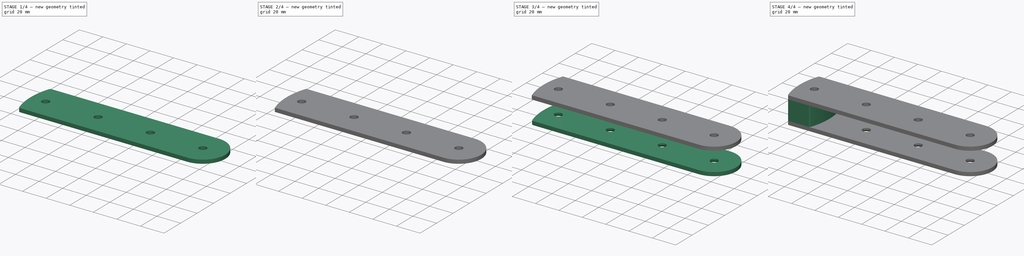
[diagram: build sequence overview — one tinted view per stage of 4, left to right]
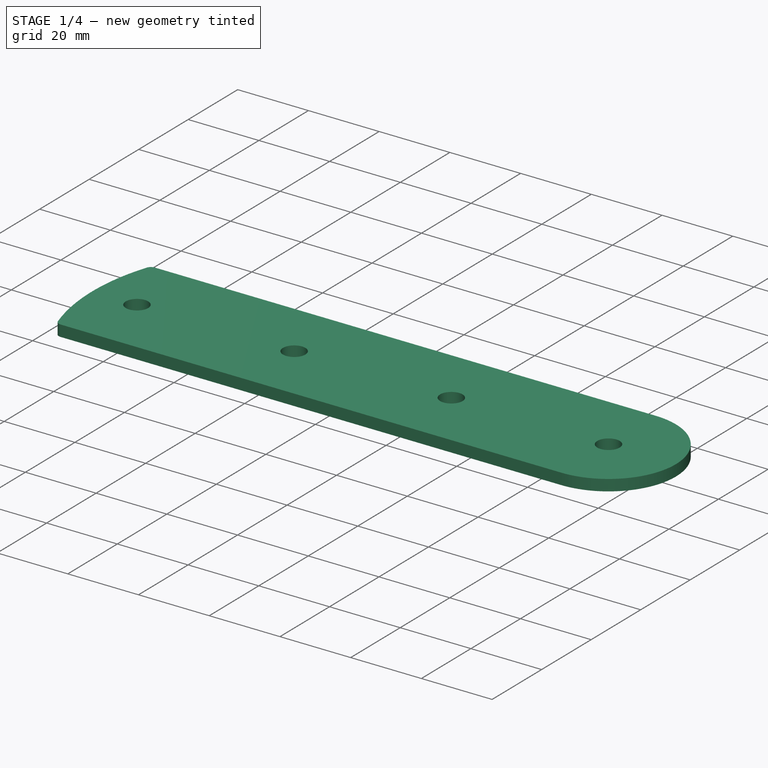
[diagram: stage 1 of 4 — iso view after this stage's code; geometry added in this stage tinted green]
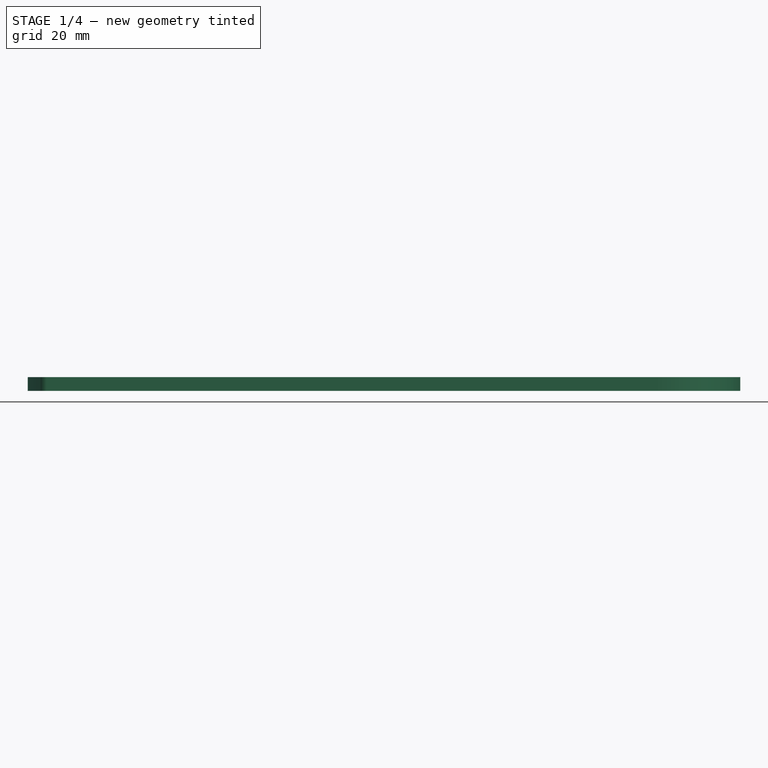
[diagram: stage 1 of 4 — front view after this stage's code; geometry added in this stage tinted green]
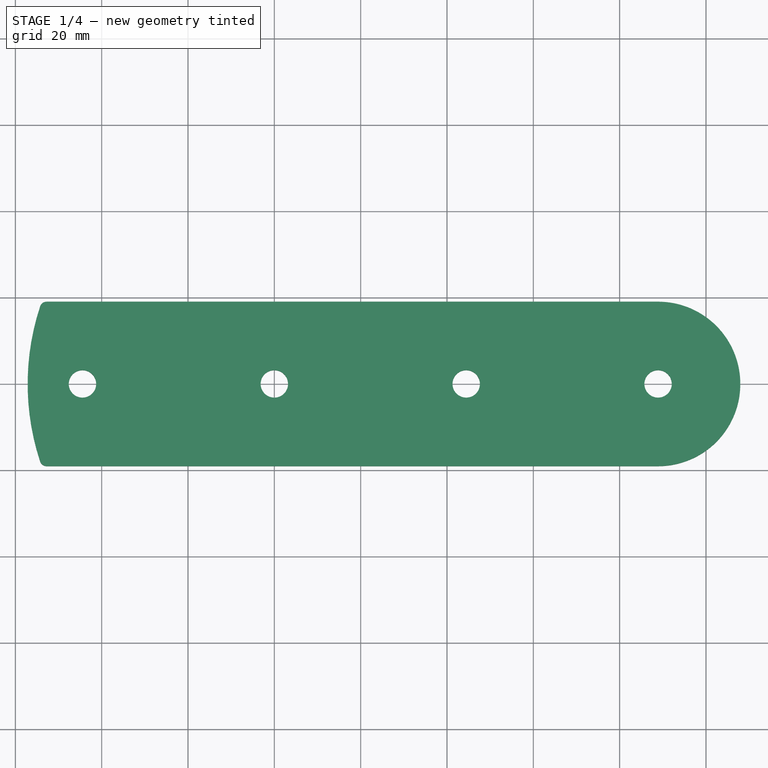
[diagram: stage 1 of 4 — top view after this stage's code; geometry added in this stage tinted green]
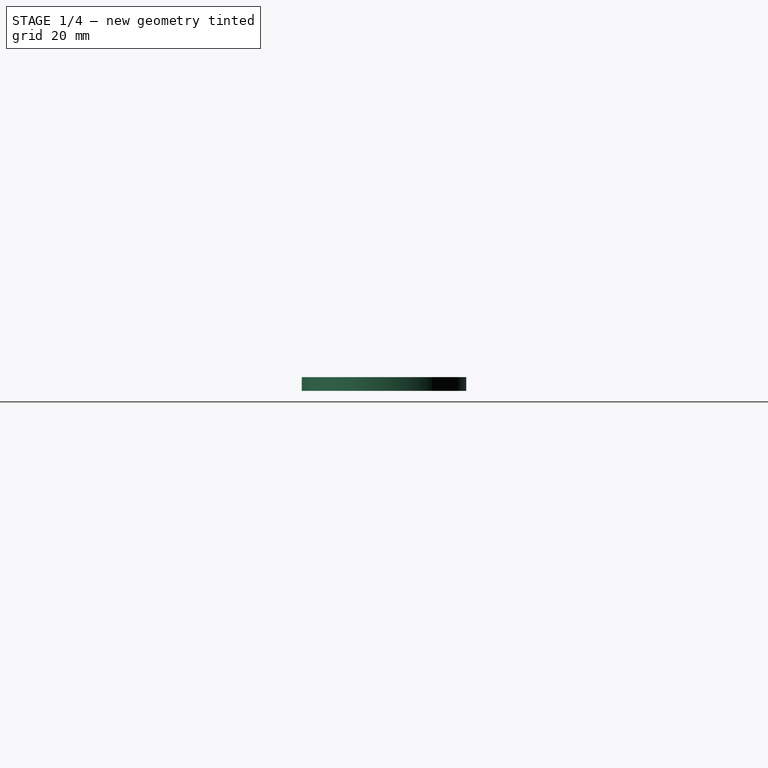
[diagram: stage 1 of 4 — right view after this stage's code; geometry added in this stage tinted green]
FCSTD DOCUMENT  (FreeCAD 0.19R)
Label: deck_organizer12-3
License: All rights reserved
LicenseURL: http://en.wikipedia.org/wiki/All_rights_reserved
objects: Part::Feature×6, Sketcher::SketchObject×5, PartDesign::Body×4, App::Part×3, Part::Extrusion×3, PartDesign::Fillet×3, App::DocumentObjectGroup×3, App::LinkGroup×2, PartDesign::FeatureBase×2, PartDesign::Pad×1, PartDesign::Chamfer×1, Part::Part2DObjectPython×1, Part::Cut×1
note: 32 computed .brp shape members not serialized (recipe doc carries the construction recipe); baked Part::Feature solids carry a one-line shape summary decoded from their .brp

FEATURE [PartDesign::Body] Body002
  BaseFeature = -> Extrude
  Group = -> [BaseFeature,Fillet001]
  Origin = -> Origin005
  Tip = -> Fillet001
FEATURE [Sketcher::SketchObject] Sketch005
  FullyConstrained = false
  MapMode = 5
  Placement = pos=(0,0,8.255) rot=(0,0,1;0rad)
  sketch-geometry (11):
    g0: ArcOfCircle CenterX=-1.2e-14 CenterY=6.6e-15 CenterZ=0 NormalX=0 NormalY=0 NormalZ=1 AngleXU=0 Radius=57.15 StartAngle=2.80176 EndAngle=3.48143
    g1: GeomPoint X=88.9 Y=0 Z=0
    g2: LineSegment StartX=-53.8815 StartY=19.05 StartZ=0 EndX=88.9 EndY=19.05 EndZ=0
    g3: LineSegment StartX=-53.8815 StartY=-19.05 StartZ=0 EndX=88.9 EndY=-19.05 EndZ=0
    g4: Circle CenterX=88.9 CenterY=1.89e-14 CenterZ=0 NormalX=0 NormalY=0 NormalZ=1 AngleXU=0 Radius=3.175
    g5: ArcOfCircle CenterX=88.9 CenterY=1.89e-14 CenterZ=0 NormalX=0 NormalY=0 NormalZ=1 AngleXU=0 Radius=19.05 StartAngle=4.71239 EndAngle=7.85398
    g6: Circle CenterX=44.45 CenterY=0 CenterZ=0 NormalX=0 NormalY=0 NormalZ=1 AngleXU=0 Radius=3.175
    g7: Circle CenterX=-1.2e-14 CenterY=6.6e-15 CenterZ=0 NormalX=0 NormalY=0 NormalZ=1 AngleXU=0 Radius=3.175
    g8: Circle CenterX=-44.45 CenterY=0 CenterZ=0 NormalX=0 NormalY=0 NormalZ=1 AngleXU=0 Radius=3.175
    g9: GeomPoint X=44.45 Y=0 Z=0
    g10: GeomPoint X=-44.45 Y=0 Z=0
  constraints (24):
    c: Radius(g0) = 57.15
    c: PointOnObject(g1,g-1)
    c: Distance(g1,g0) = 88.9
    c: Coincident(g2,g0)
    c: Horizontal(g2)
    c: Coincident(g3,g0)
    c: Horizontal(g3)
    c: Vertical(g2,g1)
    c: Vertical(g3,g1)
    c: Coincident(g5,g2)
    c: Coincident(g5,g3)
    c: Radius(g5) = 19.05
    c: Diameter(g4) = 6.35
    c: Equal(g4,g6) = 6.35
    c: PointOnObject(g9,g-1)
    c: PointOnObject(g10,g-1)
    c: Distance(g0,g10) = 44.45
    c: Distance(g0,g9) = 44.45
    c: Coincident(g5,g4)
    c: Coincident(g9,g6)
    c: Coincident(g0,g7)
    c: Coincident(g10,g8)
    c: Diameter(g7) = 6.35
    c: Diameter(g8) = 6.35
FEATURE [Part::Extrusion] Extrude001
  Base = -> Sketch005
  Dir = (0,0,1)
  DirMode = 2
  FaceMakerClass = Part::FaceMakerBullseye
  LengthFwd = 3.175
  LengthRev = 0
  Solid = true
  Symmetric = false
FEATURE [PartDesign::FeatureBase] BaseFeature001
  BaseFeature = -> Extrude001
FEATURE [PartDesign::Fillet] Fillet002
  Base = -> BaseFeature001 [Edge1,Edge2]
  BaseFeature = -> BaseFeature001
  Radius = 1.5875
  SupportTransform = false
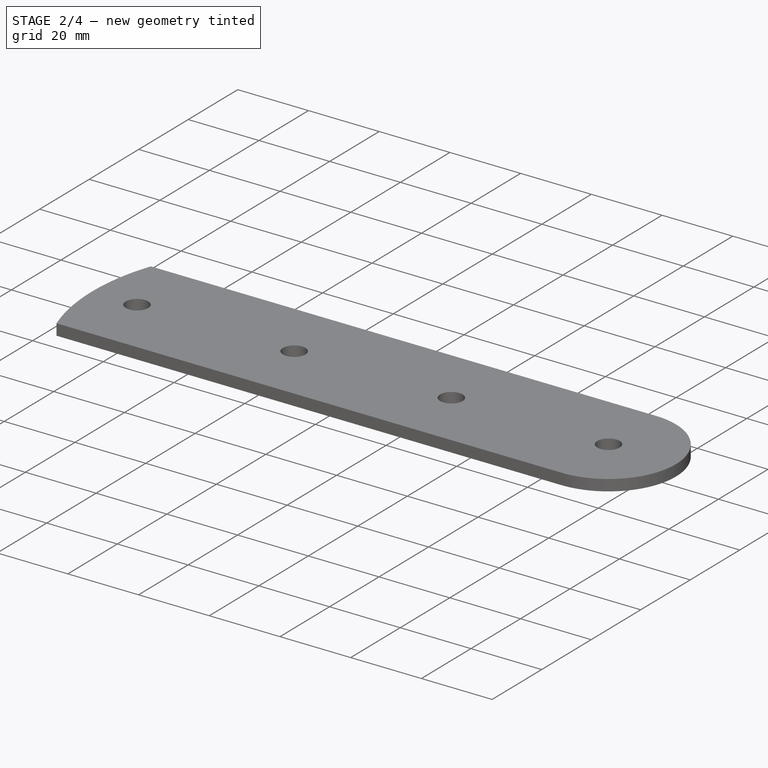
[diagram: stage 2 of 4 — iso view after this stage's code; geometry added in this stage tinted green]
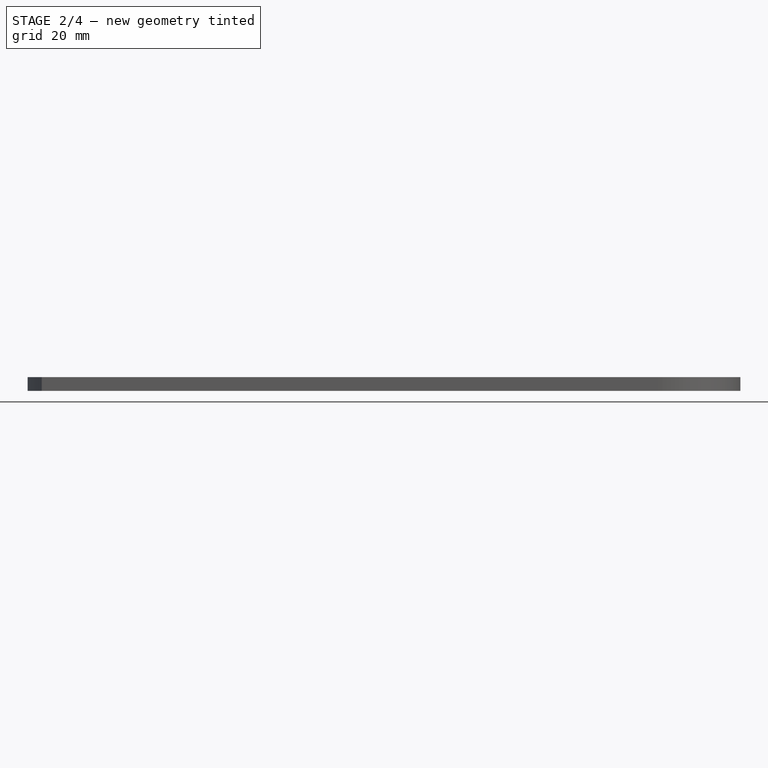
[diagram: stage 2 of 4 — front view after this stage's code; geometry added in this stage tinted green]
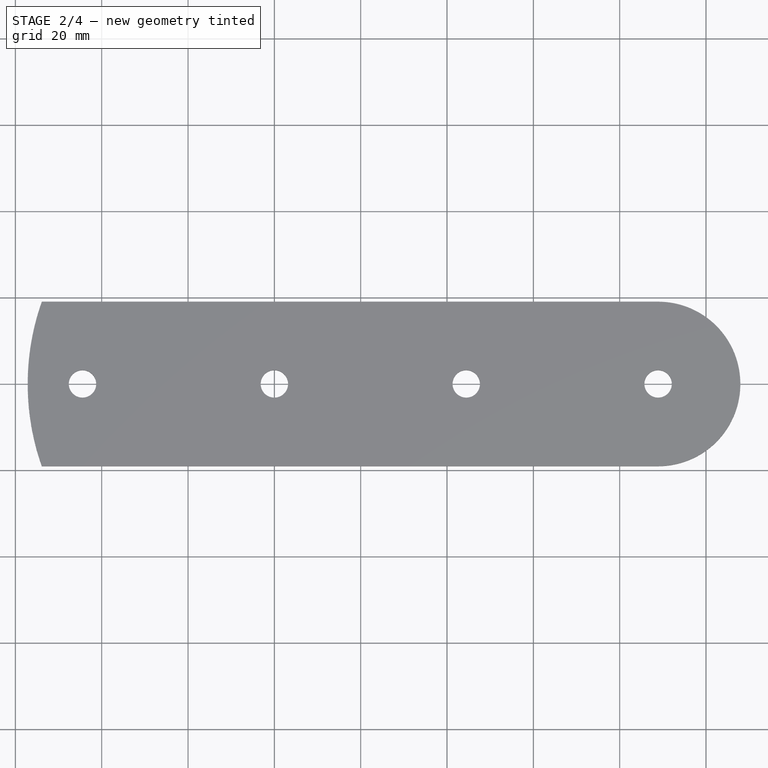
[diagram: stage 2 of 4 — top view after this stage's code; geometry added in this stage tinted green]
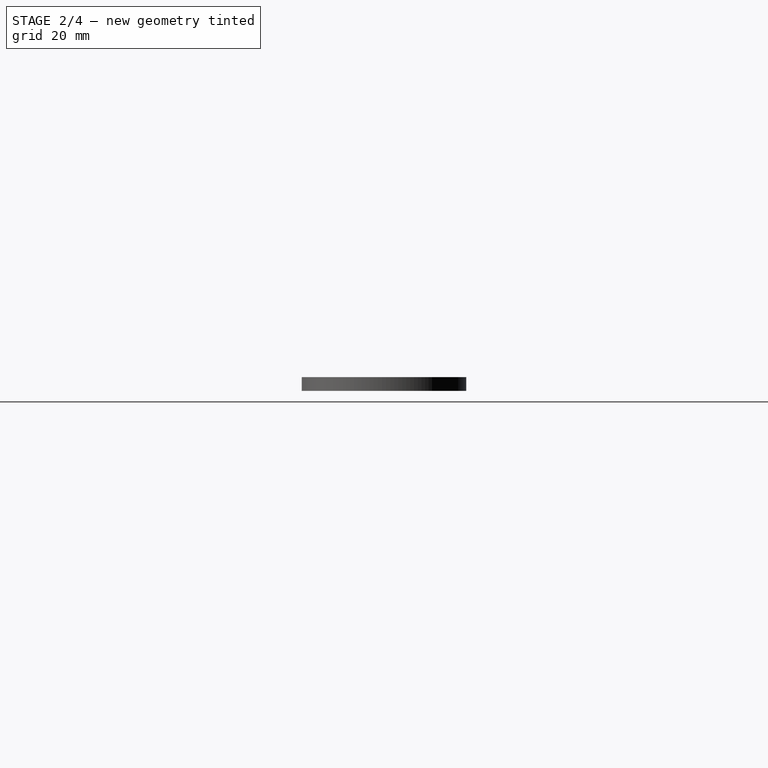
[diagram: stage 2 of 4 — right view after this stage's code; geometry added in this stage tinted green]
FEATURE [Part::Feature] Part__Feature  label="SHEAVE"
  Placement = pos=(0,0,0) rot=(0,1,0;1.5708rad)
  shape: bbox 51.45 x 49.82 x 15.88 mm, 12 faces (baked)
FEATURE [Part::Feature] Part__Feature001  label="BUSHING"
  Placement = pos=(0,0,0) rot=(0,1,0;1.5708rad)
  shape: bbox 12.7 x 12.7 x 16.51 mm, 8 faces (baked)
FEATURE [App::Part] LinkGroup
  Group = -> [Part__Feature,Part__Feature001]
  Origin = -> Origin
FEATURE [Part::Feature] Part__Feature002  label="BUSHING001"
  Placement = pos=(0,0,0) rot=(0,1,0;1.5708rad)
  shape: bbox 12.7 x 12.7 x 16.51 mm, 8 faces (baked)
FEATURE [Part::Feature] Part__Feature003  label="SHEAVE001"
  Placement = pos=(0,0,0) rot=(0,1,0;1.5708rad)
  shape: bbox 51.45 x 49.82 x 15.88 mm, 12 faces (baked)
FEATURE [App::Part] LinkGroup001
  Group = -> [Part__Feature003,Part__Feature002]
  Origin = -> Origin001
  Placement = pos=(44.45,0,0) rot=(0,0,1;0rad)
FEATURE [Part::Feature] Part__Feature004  label="BUSHING002"
  Placement = pos=(0,0,0) rot=(0,1,0;1.5708rad)
  shape: bbox 12.7 x 12.7 x 16.51 mm, 8 faces (baked)
FEATURE [Part::Feature] Part__Feature005  label="SHEAVE002"
  Placement = pos=(0,0,0) rot=(0,1,0;1.5708rad)
  shape: bbox 51.45 x 49.82 x 15.88 mm, 12 faces (baked)
FEATURE [App::Part] LinkGroup002
  Group = -> [Part__Feature005,Part__Feature004]
  Origin = -> Origin002
  Placement = pos=(88.9,0,0) rot=(0,0,1;0rad)
FEATURE [App::LinkGroup] LinkGroup003
  ElementList = -> [LinkGroup,LinkGroup001,LinkGroup002]
  LinkMode = 0
FEATURE [Sketcher::SketchObject] Sketch
  FullyConstrained = true
  MapMode = 5
  Support = -> [XY_Plane004]
  sketch-geometry (7):
    g0: ArcOfCircle CenterX=0 CenterY=0 CenterZ=0 NormalX=0 NormalY=0 NormalZ=1 AngleXU=0 Radius=57.15 StartAngle=2.80176 EndAngle=3.48143
    g1: GeomPoint X=-88.9 Y=0 Z=0
    g2: ArcOfCircle CenterX=-88.9 CenterY=0 CenterZ=0 NormalX=0 NormalY=0 NormalZ=1 AngleXU=0 Radius=57.15 StartAngle=5.94335 EndAngle=6.62302
    g3: GeomPoint X=-44.45 Y=0 Z=0
    g4: LineSegment StartX=-53.8815 StartY=19.05 StartZ=0 EndX=-35.0185 EndY=19.05 EndZ=0
    g5: LineSegment StartX=-53.8815 StartY=-19.05 StartZ=0 EndX=-35.0185 EndY=-19.05 EndZ=0
    g6: Circle CenterX=-44.45 CenterY=0 CenterZ=0 NormalX=0 NormalY=0 NormalZ=1 AngleXU=0 Radius=3.175
  constraints (18):
    c: Coincident(g0,g-1)
    c: Radius(g0) = 57.15
    c: PointOnObject(g1,g-1)
    c: Coincident(g2,g1)
    c: Radius(g2) = 57.15
    c: PointOnObject(g3,g-1)
    c: DistanceX(g3,g0) = 44.45
    c: DistanceX(g2,g3) = 44.45
    c: Horizontal(g4)
    c: Horizontal(g5)
    c: Distance(g3,g4) = 19.05
    c: Distance(g3,g5) = 19.05
    c: Coincident(g0,g4)
    c: Coincident(g2,g4)
    c: Coincident(g2,g5)
    c: Coincident(g0,g5)
    c: Coincident(g6,g3)
    c: Radius(g6) = 3.175
FEATURE [PartDesign::Pad] Pad
  Direction = (1,1,1)
  Length = 16.51
  Length2 = 99.9998
  Midplane = true
  Profile = -> Sketch
  Type = 0
FEATURE [Sketcher::SketchObject] Sketch001
  ExternalGeometry = -> [Pad]
  FullyConstrained = true
  MapMode = 5
  Placement = pos=(0,0,8.255) rot=(0,0,1;0rad)
  Support = -> [Pad]
  sketch-geometry (11):
    g0: ArcOfCircle CenterX=-1.2e-14 CenterY=6.6e-15 CenterZ=0 NormalX=0 NormalY=0 NormalZ=1 AngleXU=0 Radius=57.15 StartAngle=2.80176 EndAngle=3.48143
    g1: GeomPoint X=88.9 Y=0 Z=0
    g2: LineSegment StartX=-53.8815 StartY=19.05 StartZ=0 EndX=88.9 EndY=19.05 EndZ=0
    g3: LineSegment StartX=-53.8815 StartY=-19.05 StartZ=0 EndX=88.9 EndY=-19.05 EndZ=0
    g4: Circle CenterX=88.9 CenterY=1.89e-14 CenterZ=0 NormalX=0 NormalY=0 NormalZ=1 AngleXU=0 Radius=3.175
    g5: ArcOfCircle CenterX=88.9 CenterY=1.89e-14 CenterZ=0 NormalX=0 NormalY=0 NormalZ=1 AngleXU=0 Radius=19.05 StartAngle=4.71239 EndAngle=7.85398
    g6: Circle CenterX=44.45 CenterY=0 CenterZ=0 NormalX=0 NormalY=0 NormalZ=1 AngleXU=0 Radius=3.175
    g7: Circle CenterX=-1.2e-14 CenterY=6.6e-15 CenterZ=0 NormalX=0 NormalY=0 NormalZ=1 AngleXU=0 Radius=3.175
    g8: Circle CenterX=-44.45 CenterY=0 CenterZ=0 NormalX=0 NormalY=0 NormalZ=1 AngleXU=0 Radius=3.175
    g9: GeomPoint X=44.45 Y=0 Z=0
    g10: GeomPoint X=-44.45 Y=0 Z=0
  constraints (26):
    c: Coincident(g0,g-3)
    c: Coincident(g0,g-4)
    c: Radius(g0) = 57.15
    c: PointOnObject(g1,g-1)
    c: Distance(g1,g0) = 88.9
    c: Coincident(g2,g0)
    c: Horizontal(g2)
    c: Coincident(g3,g0)
    c: Horizontal(g3)
    c: Vertical(g2,g1)
    c: Vertical(g3,g1)
    c: Coincident(g5,g2)
    c: Coincident(g5,g3)
    c: Radius(g5) = 19.05
    c: Diameter(g4) = 6.35
    c: Equal(g4,g6) = 6.35
    c: PointOnObject(g9,g-1)
    c: PointOnObject(g10,g-1)
    c: Distance(g0,g10) = 44.45
    c: Distance(g0,g9) = 44.45
    c: Coincident(g5,g4)
    c: Coincident(g9,g6)
    c: Coincident(g0,g7)
    c: Coincident(g10,g8)
    c: Diameter(g7) = 6.35
    c: Diameter(g8) = 6.35
FEATURE [PartDesign::Body] Body  label="IDFK"
  Group = -> [Sketch001]
  Origin = -> Origin003
FEATURE [Part::Extrusion] Extrude
  Base = -> Sketch001
  Dir = (0,0,1)
  DirMode = 2
  FaceMakerClass = Part::FaceMakerBullseye
  LengthFwd = 3.175
  LengthRev = 0
  Solid = true
  Symmetric = false
FEATURE [PartDesign::Chamfer] Chamfer
  Angle = 45
  Base = -> Fillet002 [Edge11,Edge10,Edge12,Edge13]
  BaseFeature = -> Fillet002
  ChamferType = 0
  FlipDirection = false
  Size = 1.5875
  Size2 = 1
  SupportTransform = false
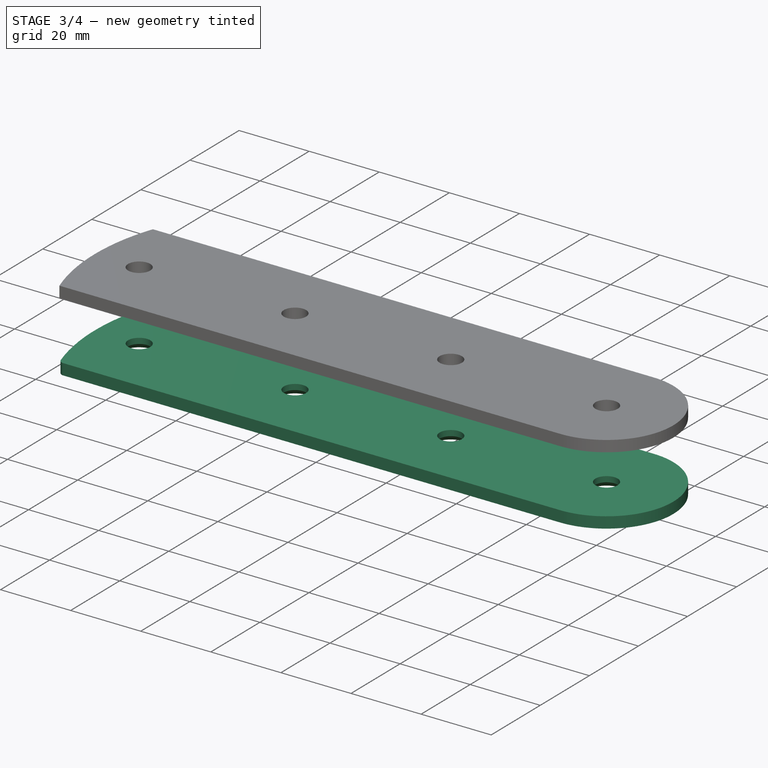
[diagram: stage 3 of 4 — iso view after this stage's code; geometry added in this stage tinted green]
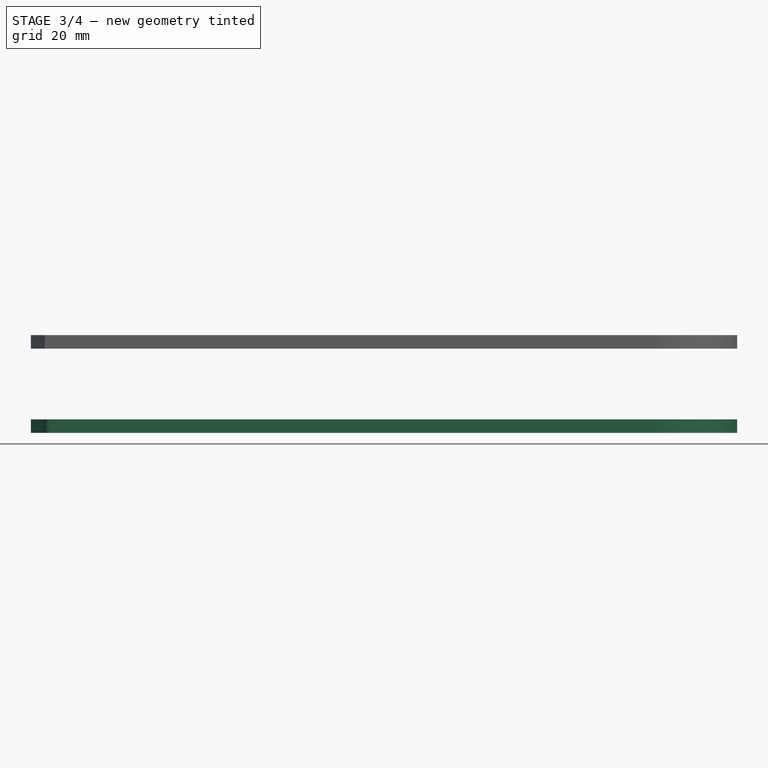
[diagram: stage 3 of 4 — front view after this stage's code; geometry added in this stage tinted green]
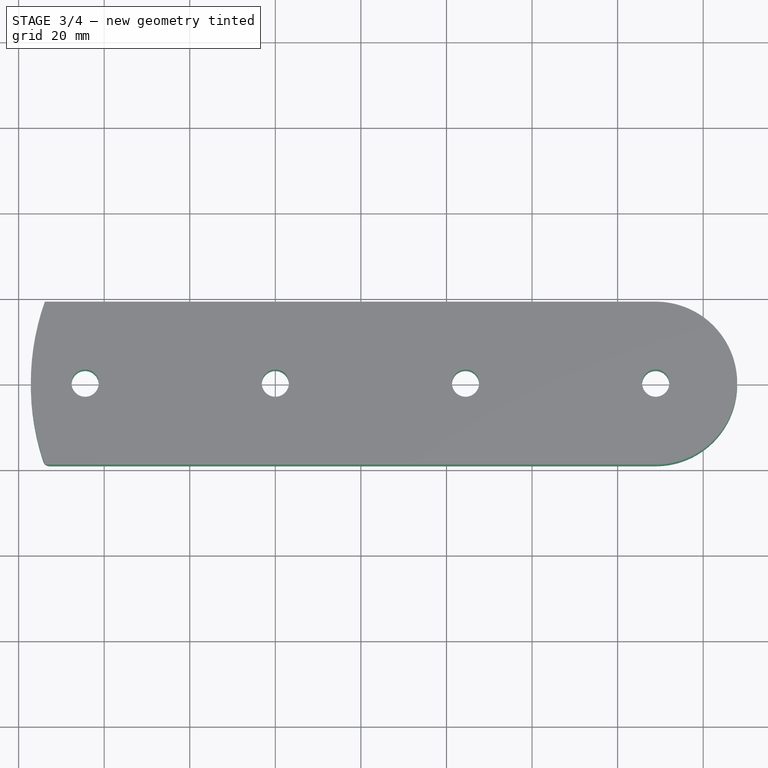
[diagram: stage 3 of 4 — top view after this stage's code; geometry added in this stage tinted green]
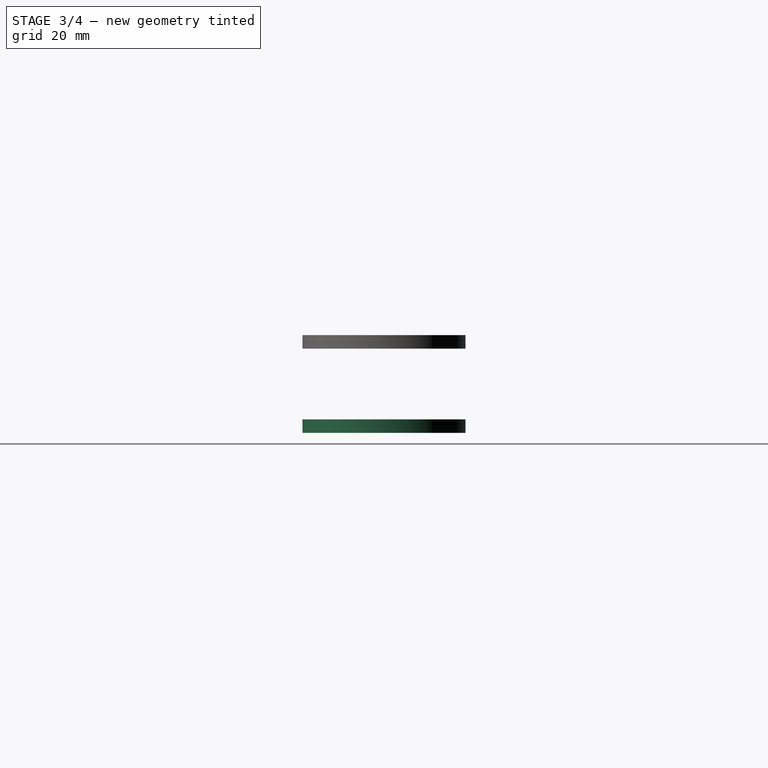
[diagram: stage 3 of 4 — right view after this stage's code; geometry added in this stage tinted green]
FEATURE [Sketcher::SketchObject] Sketch006
  FullyConstrained = false
  MapMode = 5
  Placement = pos=(0,0,8.255) rot=(1,0,0;3.14159rad)
  Support = -> [Chamfer]
  sketch-geometry (2):
    g0: LineSegment StartX=-51.7495 StartY=-16.475 StartZ=0 EndX=-51.7495 EndY=-9.28634 EndZ=0
    g1: LineSegment StartX=-51.7495 StartY=-9.28634 StartZ=0 EndX=-26.2388 EndY=-9.28634 EndZ=0
  constraints (3):
    c: Vertical(g0)
    c: Horizontal(g1)
    c: Coincident(g1,g0)
FEATURE [Part::Part2DObjectPython] ShapeString  # Draft 2D object (typed FeaturePython)
  FontFile = <path>
  Placement = pos=(-52.4624,14.9814,-11.43) rot=(1,0,0;3.14159rad)
  Size = 3.175
  String = BOTTOM
  Tracking = 0
FEATURE [Sketcher::SketchObject] Sketch007
  FullyConstrained = false
  Placement = pos=(3.6e-15,-1.42e-14,8.255) rot=(0,0,1;3.14159rad)
  sketch-geometry (155):
    g0: BSplineCurve PolesCount=3 KnotsCount=2 Degree=2 IsPeriodic=0
    g1: LineSegment StartX=51.7495 StartY=-14.8488 StartZ=0 EndX=51.7495 EndY=-9.28634 EndZ=0
    g2: BSplineCurve PolesCount=3 KnotsCount=2 Degree=2 IsPeriodic=0
    g3: BSplineCurve PolesCount=3 KnotsCount=2 Degree=2 IsPeriodic=0
    g4: BSplineCurve PolesCount=3 KnotsCount=2 Degree=2 IsPeriodic=0
    g5: BSplineCurve PolesCount=3 KnotsCount=2 Degree=2 IsPeriodic=0
    g6: BSplineCurve PolesCount=3 KnotsCount=2 Degree=2 IsPeriodic=0
    g7: BSplineCurve PolesCount=3 KnotsCount=2 Degree=2 IsPeriodic=0
    g8: BSplineCurve PolesCount=3 KnotsCount=2 Degree=2 IsPeriodic=0
    g9: BSplineCurve PolesCount=3 KnotsCount=2 Degree=2 IsPeriodic=0
    g10: BSplineCurve PolesCount=3 KnotsCount=2 Degree=2 IsPeriodic=0
    g11: BSplineCurve PolesCount=3 KnotsCount=2 Degree=2 IsPeriodic=0
    g12: BSplineCurve PolesCount=3 KnotsCount=2 Degree=2 IsPeriodic=0
    g13: BSplineCurve PolesCount=3 KnotsCount=2 Degree=2 IsPeriodic=0
    g14: BSplineCurve PolesCount=3 KnotsCount=2 Degree=2 IsPeriodic=0
    g15: BSplineCurve PolesCount=3 KnotsCount=2 Degree=2 IsPeriodic=0
    g16: BSplineCurve PolesCount=3 KnotsCount=2 Degree=2 IsPeriodic=0
    g17: LineSegment StartX=50.984 StartY=-12.1519 StartZ=0 EndX=50.984 EndY=-14.216 EndZ=0
    g18: LineSegment StartX=50.3733 StartY=-12.1519 StartZ=0 EndX=50.984 EndY=-12.1519 EndZ=0
    g19: BSplineCurve PolesCount=3 KnotsCount=2 Degree=2 IsPeriodic=0
    g20: BSplineCurve PolesCount=3 KnotsCount=2 Degree=2 IsPeriodic=0
    g21: BSplineCurve PolesCount=3 KnotsCount=2 Degree=2 IsPeriodic=0
    g22: BSplineCurve PolesCount=3 KnotsCount=2 Degree=2 IsPeriodic=0
    g23: BSplineCurve PolesCount=3 KnotsCount=2 Degree=2 IsPeriodic=0
    g24: BSplineCurve PolesCount=3 KnotsCount=2 Degree=2 IsPeriodic=0
    g25: BSplineCurve PolesCount=3 KnotsCount=2 Degree=2 IsPeriodic=0
    g26: BSplineCurve PolesCount=3 KnotsCount=2 Degree=2 IsPeriodic=0
    g27: LineSegment StartX=50.984 StartY=-11.6213 StartZ=0 EndX=50.459 EndY=-11.6213 EndZ=0
    g28: LineSegment StartX=50.984 StartY=-9.88321 StartZ=0 EndX=50.984 EndY=-11.6213 EndZ=0
    g29: BSplineCurve PolesCount=3 KnotsCount=2 Degree=2 IsPeriodic=0
    g30: BSplineCurve PolesCount=3 KnotsCount=2 Degree=2 IsPeriodic=0
    g31: BSplineCurve PolesCount=3 KnotsCount=2 Degree=2 IsPeriodic=0
    g32: BSplineCurve PolesCount=3 KnotsCount=2 Degree=2 IsPeriodic=0
    g33: BSplineCurve PolesCount=3 KnotsCount=2 Degree=2 IsPeriodic=0
    g34: BSplineCurve PolesCount=3 KnotsCount=2 Degree=2 IsPeriodic=0
    g35: BSplineCurve PolesCount=3 KnotsCount=2 Degree=2 IsPeriodic=0
    g36: BSplineCurve PolesCount=3 KnotsCount=2 Degree=2 IsPeriodic=0
    g37: BSplineCurve PolesCount=3 KnotsCount=2 Degree=2 IsPeriodic=0
    g38: BSplineCurve PolesCount=3 KnotsCount=2 Degree=2 IsPeriodic=0
    g39: BSplineCurve PolesCount=3 KnotsCount=2 Degree=2 IsPeriodic=0
    g40: BSplineCurve PolesCount=3 KnotsCount=2 Degree=2 IsPeriodic=0
    g41: BSplineCurve PolesCount=3 KnotsCount=2 Degree=2 IsPeriodic=0
    g42: BSplineCurve PolesCount=3 KnotsCount=2 Degree=2 IsPeriodic=0
    g43: BSplineCurve PolesCount=3 KnotsCount=2 Degree=2 IsPeriodic=0
    g44: BSplineCurve PolesCount=3 KnotsCount=2 Degree=2 IsPeriodic=0
    g45: BSplineCurve PolesCount=3 KnotsCount=2 Degree=2 IsPeriodic=0
    g46: BSplineCurve PolesCount=3 KnotsCount=2 Degree=2 IsPeriodic=0
    g47: BSplineCurve PolesCount=3 KnotsCount=2 Degree=2 IsPeriodic=0
    g48: BSplineCurve PolesCount=3 KnotsCount=2 Degree=2 IsPeriodic=0
    g49: BSplineCurve PolesCount=3 KnotsCount=2 Degree=2 IsPeriodic=0
    g50: BSplineCurve PolesCount=3 KnotsCount=2 Degree=2 IsPeriodic=0
    g51: BSplineCurve PolesCount=3 KnotsCount=2 Degree=2 IsPeriodic=0
    g52: BSplineCurve PolesCount=3 KnotsCount=2 Degree=2 IsPeriodic=0
    g53: BSplineCurve PolesCount=3 KnotsCount=2 Degree=2 IsPeriodic=0
    g54: BSplineCurve PolesCount=3 KnotsCount=2 Degree=2 IsPeriodic=0
    g55: BSplineCurve PolesCount=3 KnotsCount=2 Degree=2 IsPeriodic=0
    g56: BSplineCurve PolesCount=3 KnotsCount=2 Degree=2 IsPeriodic=0
    g57: BSplineCurve PolesCount=3 KnotsCount=2 Degree=2 IsPeriodic=0
    g58: BSplineCurve PolesCount=3 KnotsCount=2 Degree=2 IsPeriodic=0
    g59: BSplineCurve PolesCount=3 KnotsCount=2 Degree=2 IsPeriodic=0
    g60: BSplineCurve PolesCount=3 KnotsCount=2 Degree=2 IsPeriodic=0
    g61: BSplineCurve PolesCount=3 KnotsCount=2 Degree=2 IsPeriodic=0
    g62: BSplineCurve PolesCount=3 KnotsCount=2 Degree=2 IsPeriodic=0
    g63: BSplineCurve PolesCount=3 KnotsCount=2 Degree=2 IsPeriodic=0
    g64: BSplineCurve PolesCount=3 KnotsCount=2 Degree=2 IsPeriodic=0
    g65: BSplineCurve PolesCount=3 KnotsCount=2 Degree=2 IsPeriodic=0
    g66: BSplineCurve PolesCount=3 KnotsCount=2 Degree=2 IsPeriodic=0
    g67: BSplineCurve PolesCount=3 KnotsCount=2 Degree=2 IsPeriodic=0
    g68: LineSegment StartX=39.5911 StartY=-9.14541 StartZ=0 EndX=39.5911 EndY=-9.85281 EndZ=0
    g69: LineSegment StartX=42.9705 StartY=-9.14541 StartZ=0 EndX=39.5911 EndY=-9.14541 EndZ=0
    g70: LineSegment StartX=42.9705 StartY=-9.85281 StartZ=0 EndX=42.9705 EndY=-9.14541 EndZ=0
    g71: LineSegment StartX=41.6635 StartY=-9.85281 StartZ=0 EndX=42.9705 EndY=-9.85281 EndZ=0
    g72: LineSegment StartX=41.6635 StartY=-14.9814 StartZ=0 EndX=41.6635 EndY=-9.85281 EndZ=0
    g73: LineSegment StartX=40.8981 StartY=-14.9814 StartZ=0 EndX=41.6635 EndY=-14.9814 EndZ=0
    g74: LineSegment StartX=40.8981 StartY=-9.85281 StartZ=0 EndX=40.8981 EndY=-14.9814 EndZ=0
    g75: LineSegment StartX=39.5911 StartY=-9.85281 StartZ=0 EndX=40.8981 EndY=-9.85281 EndZ=0
    g76: LineSegment StartX=35.8772 StartY=-9.14541 StartZ=0 EndX=35.8772 EndY=-9.85281 EndZ=0
    g77: LineSegment StartX=39.2567 StartY=-9.14541 StartZ=0 EndX=35.8772 EndY=-9.14541 EndZ=0
    g78: LineSegment StartX=39.2567 StartY=-9.85281 StartZ=0 EndX=39.2567 EndY=-9.14541 EndZ=0
    g79: LineSegment StartX=37.9497 StartY=-9.85281 StartZ=0 EndX=39.2567 EndY=-9.85281 EndZ=0
    g80: LineSegment StartX=37.9497 StartY=-14.9814 StartZ=0 EndX=37.9497 EndY=-9.85281 EndZ=0
    g81: LineSegment StartX=37.1842 StartY=-14.9814 StartZ=0 EndX=37.9497 EndY=-14.9814 EndZ=0
    g82: LineSegment StartX=37.1842 StartY=-9.85281 StartZ=0 EndX=37.1842 EndY=-14.9814 EndZ=0
    g83: LineSegment StartX=35.8772 StartY=-9.85281 StartZ=0 EndX=37.1842 EndY=-9.85281 EndZ=0
    g84: BSplineCurve PolesCount=3 KnotsCount=2 Degree=2 IsPeriodic=0
    g85: BSplineCurve PolesCount=3 KnotsCount=2 Degree=2 IsPeriodic=0
    g86: BSplineCurve PolesCount=3 KnotsCount=2 Degree=2 IsPeriodic=0
    g87: BSplineCurve PolesCount=3 KnotsCount=2 Degree=2 IsPeriodic=0
    g88: BSplineCurve PolesCount=3 KnotsCount=2 Degree=2 IsPeriodic=0
    g89: BSplineCurve PolesCount=3 KnotsCount=2 Degree=2 IsPeriodic=0
    g90: BSplineCurve PolesCount=3 KnotsCount=2 Degree=2 IsPeriodic=0
    g91: BSplineCurve PolesCount=3 KnotsCount=2 Degree=2 IsPeriodic=0
    g92: BSplineCurve PolesCount=3 KnotsCount=2 Degree=2 IsPeriodic=0
    g93: BSplineCurve PolesCount=3 KnotsCount=2 Degree=2 IsPeriodic=0
    g94: BSplineCurve PolesCount=3 KnotsCount=2 Degree=2 IsPeriodic=0
    g95: BSplineCurve PolesCount=3 KnotsCount=2 Degree=2 IsPeriodic=0
    g96: BSplineCurve PolesCount=3 KnotsCount=2 Degree=2 IsPeriodic=0
    g97: BSplineCurve PolesCount=3 KnotsCount=2 Degree=2 IsPeriodic=0
    g98: BSplineCurve PolesCount=3 KnotsCount=2 Degree=2 IsPeriodic=0
    g99: BSplineCurve PolesCount=3 KnotsCount=2 Degree=2 IsPeriodic=0
    g100: BSplineCurve PolesCount=3 KnotsCount=2 Degree=2 IsPeriodic=0
    g101: BSplineCurve PolesCount=3 KnotsCount=2 Degree=2 IsPeriodic=0
    g102: BSplineCurve PolesCount=3 KnotsCount=2 Degree=2 IsPeriodic=0
    g103: BSplineCurve PolesCount=3 KnotsCount=2 Degree=2 IsPeriodic=0
    g104: BSplineCurve PolesCount=3 KnotsCount=2 Degree=2 IsPeriodic=0
    g105: BSplineCurve PolesCount=3 KnotsCount=2 Degree=2 IsPeriodic=0
    g106: BSplineCurve PolesCount=3 KnotsCount=2 Degree=2 IsPeriodic=0
    g107: BSplineCurve PolesCount=3 KnotsCount=2 Degree=2 IsPeriodic=0
    g108: BSplineCurve PolesCount=3 KnotsCount=2 Degree=2 IsPeriodic=0
    g109: BSplineCurve PolesCount=3 KnotsCount=2 Degree=2 IsPeriodic=0
    g110: BSplineCurve PolesCount=3 KnotsCount=2 Degree=2 IsPeriodic=0
    g111: BSplineCurve PolesCount=3 KnotsCount=2 Degree=2 IsPeriodic=0
    g112: BSplineCurve PolesCount=3 KnotsCount=2 Degree=2 IsPeriodic=0
    g113: BSplineCurve PolesCount=3 KnotsCount=2 Degree=2 IsPeriodic=0
    g114: BSplineCurve PolesCount=3 KnotsCount=2 Degree=2 IsPeriodic=0
    g115: BSplineCurve PolesCount=3 KnotsCount=2 Degree=2 IsPeriodic=0
    g116: BSplineCurve PolesCount=3 KnotsCount=2 Degree=2 IsPeriodic=0
    g117: LineSegment StartX=27.4824 StartY=-14.0972 StartZ=0 EndX=28.129 EndY=-14.0972 EndZ=0
    g118: BSplineCurve PolesCount=3 KnotsCount=2 Degree=2 IsPeriodic=0
    g119: BSplineCurve PolesCount=3 KnotsCount=2 Degree=2 IsPeriodic=0
    g120: BSplineCurve PolesCount=3 KnotsCount=2 Degree=2 IsPeriodic=0
    g121: BSplineCurve PolesCount=3 KnotsCount=2 Degree=2 IsPeriodic=0
    g122: BSplineCurve PolesCount=3 KnotsCount=2 Degree=2 IsPeriodic=0
    g123: BSplineCurve PolesCount=3 KnotsCount=2 Degree=2 IsPeriodic=0
    g124: BSplineCurve PolesCount=3 KnotsCount=2 Degree=2 IsPeriodic=0
    g125: BSplineCurve PolesCount=3 KnotsCount=2 Degree=2 IsPeriodic=0
    g126: BSplineCurve PolesCount=3 KnotsCount=2 Degree=2 IsPeriodic=0
    g127: BSplineCurve PolesCount=3 KnotsCount=2 Degree=2 IsPeriodic=0
    g128: LineSegment StartX=25.3105 StartY=-14.9814 StartZ=0 EndX=26.04 EndY=-14.9814 EndZ=0
    g129: BSplineCurve PolesCount=3 KnotsCount=2 Degree=2 IsPeriodic=0
    g130: BSplineCurve PolesCount=3 KnotsCount=2 Degree=2 IsPeriodic=0
    g131: BSplineCurve PolesCount=3 KnotsCount=2 Degree=2 IsPeriodic=0
    g132: BSplineCurve PolesCount=3 KnotsCount=2 Degree=2 IsPeriodic=0
    g133: LineSegment StartX=26.3716 StartY=-9.14541 StartZ=0 EndX=25.6144 EndY=-9.14541 EndZ=0
    g134: BSplineCurve PolesCount=3 KnotsCount=2 Degree=2 IsPeriodic=0
    g135: BSplineCurve PolesCount=3 KnotsCount=2 Degree=2 IsPeriodic=0
    g136: BSplineCurve PolesCount=3 KnotsCount=2 Degree=2 IsPeriodic=0
    g137: BSplineCurve PolesCount=3 KnotsCount=2 Degree=2 IsPeriodic=0
    g138: BSplineCurve PolesCount=3 KnotsCount=2 Degree=2 IsPeriodic=0
    g139: BSplineCurve PolesCount=3 KnotsCount=2 Degree=2 IsPeriodic=0
    g140: BSplineCurve PolesCount=3 KnotsCount=2 Degree=2 IsPeriodic=0
    g141: BSplineCurve PolesCount=3 KnotsCount=2 Degree=2 IsPeriodic=0
    g142: LineSegment StartX=29.9942 StartY=-9.14541 StartZ=0 EndX=29.2398 EndY=-9.14541 EndZ=0
    g143: BSplineCurve PolesCount=3 KnotsCount=2 Degree=2 IsPeriodic=0
    g144: BSplineCurve PolesCount=3 KnotsCount=2 Degree=2 IsPeriodic=0
    g145: BSplineCurve PolesCount=3 KnotsCount=2 Degree=2 IsPeriodic=0
    g146: BSplineCurve PolesCount=3 KnotsCount=2 Degree=2 IsPeriodic=0
    g147: LineSegment StartX=29.5714 StartY=-14.9814 StartZ=0 EndX=30.3009 EndY=-14.9814 EndZ=0
    g148: BSplineCurve PolesCount=3 KnotsCount=2 Degree=2 IsPeriodic=0
    g149: BSplineCurve PolesCount=3 KnotsCount=2 Degree=2 IsPeriodic=0
    g150: BSplineCurve PolesCount=3 KnotsCount=2 Degree=2 IsPeriodic=0
    g151: BSplineCurve PolesCount=3 KnotsCount=2 Degree=2 IsPeriodic=0
    g152: BSplineCurve PolesCount=3 KnotsCount=2 Degree=2 IsPeriodic=0
    g153: BSplineCurve PolesCount=3 KnotsCount=2 Degree=2 IsPeriodic=0
    g154: BSplineCurve PolesCount=3 KnotsCount=2 Degree=2 IsPeriodic=0
  constraints (181):
    c: Coincident(g0,g1)
    c: Vertical(g1)
    c: Coincident(g1,g2)
    c: Coincident(g2,g3)
    c: Coincident(g3,g4)
    c: Coincident(g4,g5)
    c: Coincident(g5,g6)
    c: Coincident(g6,g7)
    c: Coincident(g7,g8)
    c: Coincident(g8,g9)
    c: Coincident(g9,g10)
    c: Coincident(g10,g11)
    c: Coincident(g11,g12)
    c: Coincident(g12,g13)
    c: Coincident(g13,g14)
    c: Coincident(g14,g15)
    c: Coincident(g15,g16)
    c: Coincident(g16,g0)
    c: Vertical(g17)
    c: Coincident(g17,g18)
    c: Horizontal(g18)
    c: Coincident(g18,g19)
    c: Coincident(g19,g20)
    c: Coincident(g20,g21)
    c: Coincident(g21,g22)
    c: Coincident(g22,g23)
    c: Coincident(g23,g24)
    c: Coincident(g24,g25)
    c: Coincident(g25,g26)
    c: Coincident(g26,g17)
    c: Horizontal(g27)
    c: Coincident(g27,g28)
    c: Vertical(g28)
    c: Coincident(g28,g29)
    c: Coincident(g29,g30)
    c: Coincident(g30,g31)
    c: Coincident(g31,g32)
    c: Coincident(g32,g33)
    c: Coincident(g33,g34)
    c: Coincident(g34,g35)
    c: Coincident(g35,g27)
    c: Coincident(g36,g37)
    c: Coincident(g37,g38)
    c: Coincident(g38,g39)
    c: Coincident(g39,g40)
    c: Coincident(g40,g41)
    c: Coincident(g41,g42)
    c: Coincident(g42,g43)
    c: Coincident(g43,g44)
    c: Coincident(g44,g45)
    c: Coincident(g45,g46)
    c: Coincident(g46,g47)
    c: Coincident(g47,g48)
    c: Coincident(g48,g49)
    c: Coincident(g49,g50)
    c: Coincident(g50,g51)
    c: Coincident(g51,g36)
    c: Coincident(g52,g53)
    c: Coincident(g53,g54)
    c: Coincident(g54,g55)
    c: Coincident(g55,g56)
    c: Coincident(g56,g57)
    c: Coincident(g57,g58)
    c: Coincident(g58,g59)
    c: Coincident(g59,g60)
    c: Coincident(g60,g61)
    c: Coincident(g61,g62)
    c: Coincident(g62,g63)
    c: Coincident(g63,g64)
    c: Coincident(g64,g65)
    c: Coincident(g65,g66)
    c: Coincident(g66,g67)
    c: Coincident(g67,g52)
    c: Vertical(g68)
    c: Coincident(g68,g69)
    c: Horizontal(g69)
    c: Coincident(g69,g70)
    c: Vertical(g70)
    c: Coincident(g70,g71)
    c: Horizontal(g71)
    c: Coincident(g71,g72)
    c: Vertical(g72)
    c: Coincident(g72,g73)
    c: Horizontal(g73)
    c: Coincident(g73,g74)
    c: Vertical(g74)
    c: Coincident(g74,g75)
    c: Horizontal(g75)
    c: Coincident(g75,g68)
    c: Vertical(g76)
    c: Coincident(g76,g77)
    c: Horizontal(g77)
    c: Coincident(g77,g78)
    c: Vertical(g78)
    c: Coincident(g78,g79)
    c: Horizontal(g79)
    c: Coincident(g79,g80)
    c: Vertical(g80)
    c: Coincident(g80,g81)
    c: Horizontal(g81)
    c: Coincident(g81,g82)
    c: Vertical(g82)
    c: Coincident(g82,g83)
    c: Horizontal(g83)
    c: Coincident(g83,g76)
    c: Coincident(g84,g85)
    c: Coincident(g85,g86)
    c: Coincident(g86,g87)
    c: Coincident(g87,g88)
    c: Coincident(g88,g89)
    c: Coincident(g89,g90)
    c: Coincident(g90,g91)
    c: Coincident(g91,g92)
    c: Coincident(g92,g93)
    c: Coincident(g93,g94)
    c: Coincident(g94,g95)
    c: Coincident(g95,g96)
    c: Coincident(g96,g97)
    c: Coincident(g97,g98)
    c: Coincident(g98,g99)
    c: Coincident(g99,g84)
    c: Coincident(g100,g101)
    c: Coincident(g101,g102)
    c: Coincident(g102,g103)
    c: Coincident(g103,g104)
    c: Coincident(g104,g105)
    c: Coincident(g105,g106)
    c: Coincident(g106,g107)
    c: Coincident(g107,g108)
    c: Coincident(g108,g109)
    c: Coincident(g109,g110)
    c: Coincident(g110,g111)
    c: Coincident(g111,g112)
    c: Coincident(g112,g113)
    c: Coincident(g113,g114)
    c: Coincident(g114,g115)
    c: Coincident(g115,g100)
    c: Coincident(g116,g117)
    c: Horizontal(g117)
    c: Coincident(g117,g118)
    c: Coincident(g118,g119)
    c: Coincident(g119,g120)
    c: Coincident(g120,g121)
    c: Coincident(g121,g122)
    c: Coincident(g122,g123)
    c: Coincident(g123,g124)
    c: Coincident(g124,g125)
    c: Coincident(g125,g126)
    c: Coincident(g126,g127)
    c: Coincident(g127,g128)
    c: Horizontal(g128)
    c: Coincident(g128,g129)
    c: Coincident(g129,g130)
    c: Coincident(g130,g131)
    c: Coincident(g131,g132)
    c: Coincident(g132,g133)
    c: Horizontal(g133)
    c: Coincident(g133,g134)
    c: Coincident(g134,g135)
    c: Coincident(g135,g136)
    c: Coincident(g136,g137)
    c: Coincident(g137,g138)
    c: Coincident(g138,g139)
    c: Coincident(g139,g140)
    c: Coincident(g140,g141)
    c: Coincident(g141,g142)
    c: Horizontal(g142)
    c: Coincident(g142,g143)
    c: Coincident(g143,g144)
    c: Coincident(g144,g145)
    c: Coincident(g145,g146)
    c: Coincident(g146,g147)
    c: Horizontal(g147)
    c: Coincident(g147,g148)
    c: Coincident(g148,g149)
    c: Coincident(g149,g150)
    c: Coincident(g150,g151)
    c: Coincident(g151,g152)
    c: Coincident(g152,g153)
    c: Coincident(g153,g154)
    c: Coincident(g154,g116)
FEATURE [PartDesign::Body] Body003
  BaseFeature = -> Extrude001
  Group = -> [BaseFeature001,Fillet002,Chamfer,Sketch006,Sketch007]
  Origin = -> Origin006
  Placement = pos=(0,0,-19.685) rot=(0,0,1;0rad)
  Tip = -> Chamfer
FEATURE [Part::Extrusion] Extrude003
  Base = -> ShapeString
  Dir = (0,0,-1)
  DirMode = 2
  FaceMakerClass = Part::FaceMakerBullseye
  LengthFwd = -0.254
  LengthRev = 0
  Solid = false
  Symmetric = false
FEATURE [Part::Cut] Cut
  Base = -> Body003
  Tool = -> Extrude003
FEATURE [App::DocumentObjectGroup] Group  label="TOP PLATE"
  Group = -> [Body002]
FEATURE [App::DocumentObjectGroup] Group001  label="BOTTOM PLATE"
  Group = -> [Cut]
FEATURE [App::LinkGroup] LinkGroup004
  ElementList = -> [Body001,Group,Group001]
  LinkMode = 0
FEATURE [App::DocumentObjectGroup] Group002  label="REFERANCE GEO"
  Group = -> [Extrude,Body,Extrude001,Body003]
note: 1 file-system path scrubbed to <path> (originals preserved in the JSON sidecar)
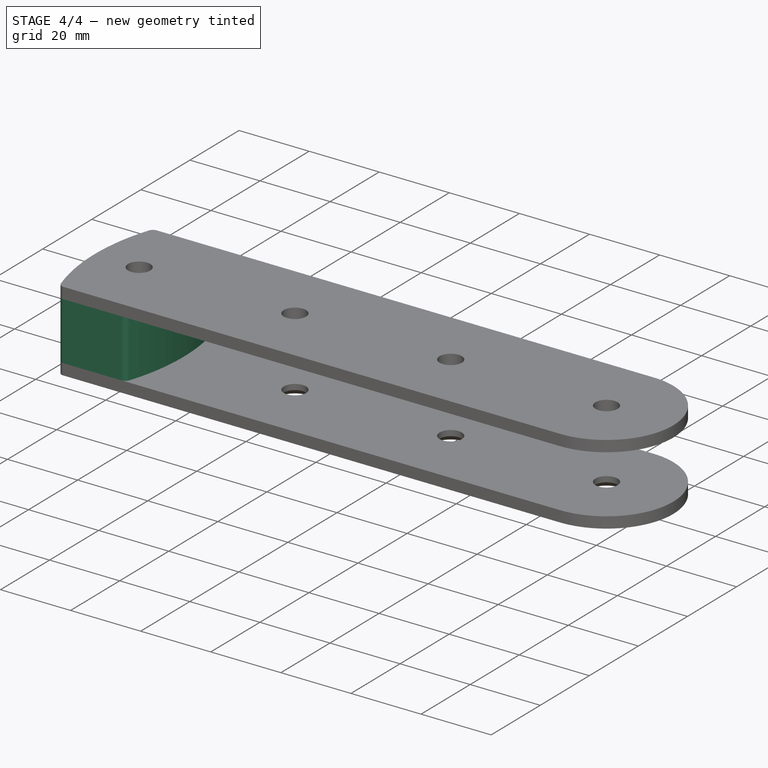
[diagram: stage 4 of 4 — iso view after this stage's code; geometry added in this stage tinted green]
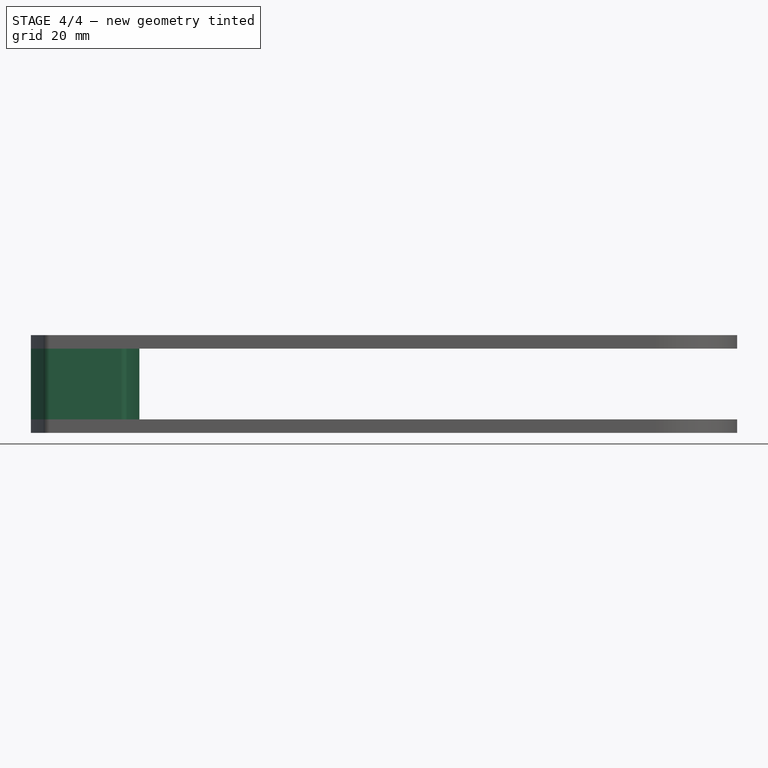
[diagram: stage 4 of 4 — front view after this stage's code; geometry added in this stage tinted green]
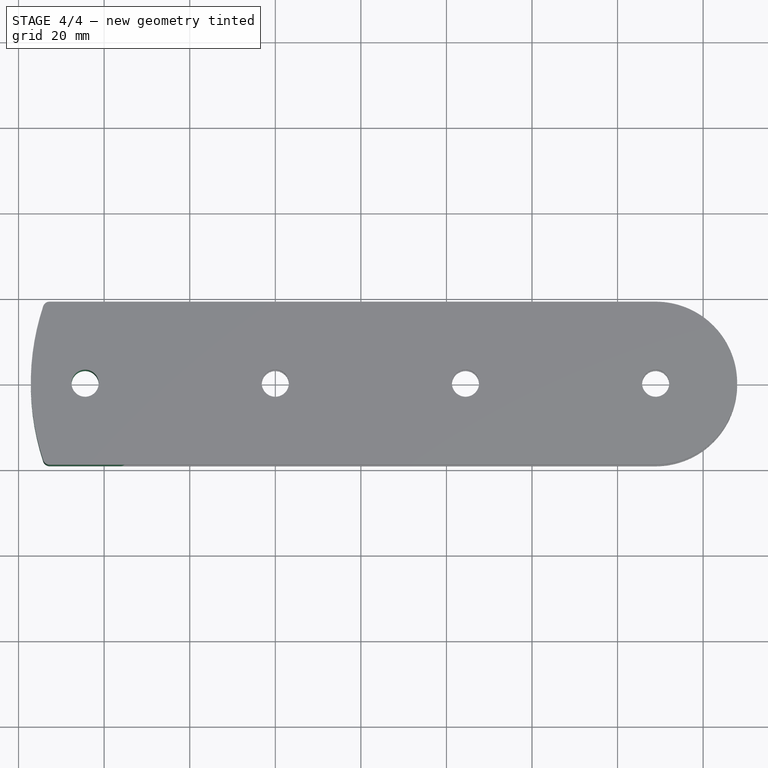
[diagram: stage 4 of 4 — top view after this stage's code; geometry added in this stage tinted green]
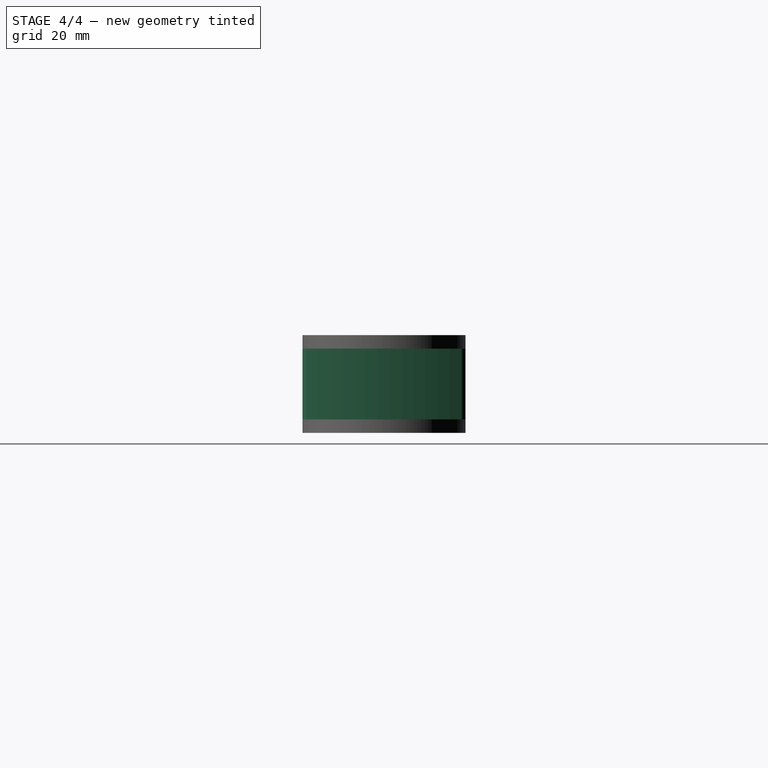
[diagram: stage 4 of 4 — right view after this stage's code; geometry added in this stage tinted green]
FEATURE [PartDesign::Fillet] Fillet
  Base = -> Pad [Edge5,Edge2,Edge8,Edge1]
  BaseFeature = -> Pad
  Radius = 1.5875
  SupportTransform = false
FEATURE [PartDesign::Body] Body001  label="END BLOCK"
  Group = -> [Sketch,Pad,Fillet]
  Origin = -> Origin004
  Tip = -> Fillet
FEATURE [PartDesign::FeatureBase] BaseFeature
  BaseFeature = -> Extrude
FEATURE [PartDesign::Fillet] Fillet001
  Base = -> BaseFeature [Edge1,Edge2]
  BaseFeature = -> BaseFeature
  Radius = 1.5875
  SupportTransform = false
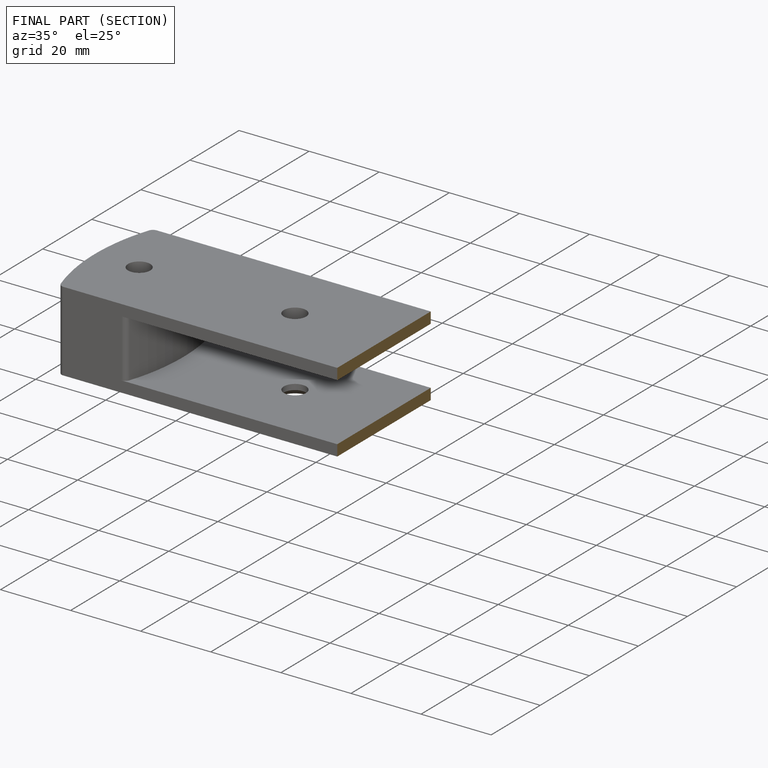
[diagram: finished part — half-section view (interior)]
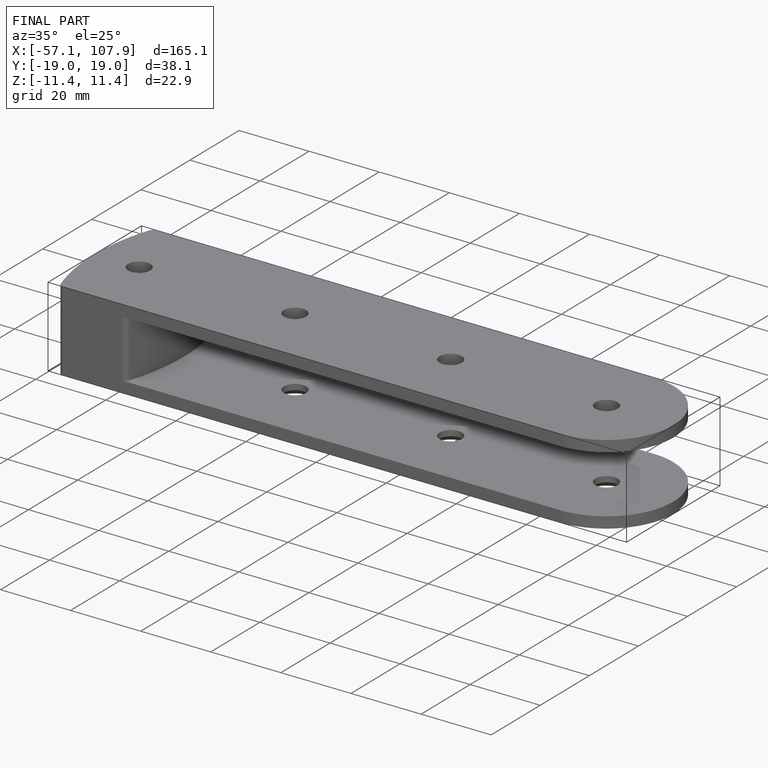
[diagram: finished part — iso view with bounding-box wireframe]
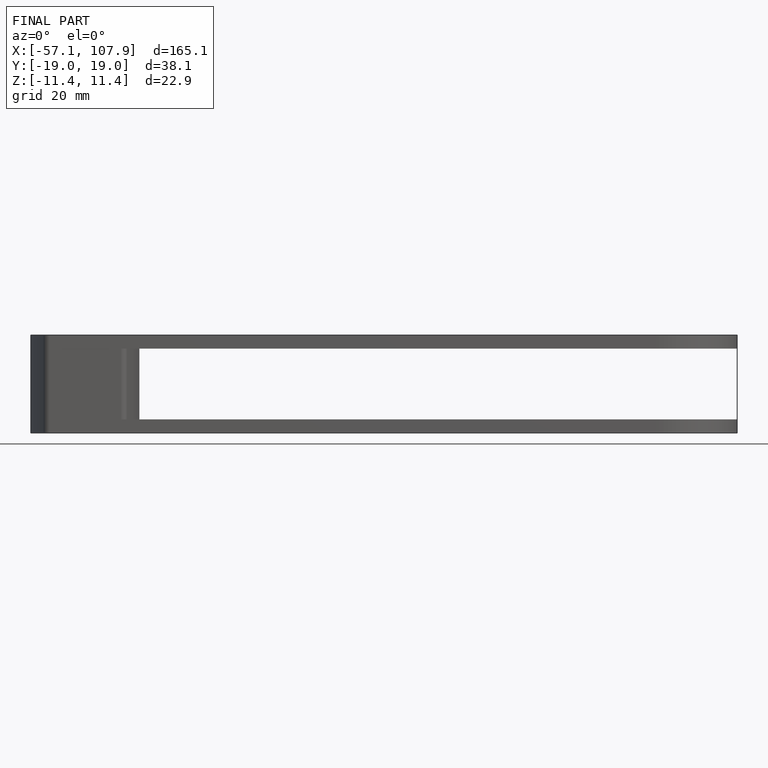
[diagram: finished part — front view with bounding-box wireframe]
